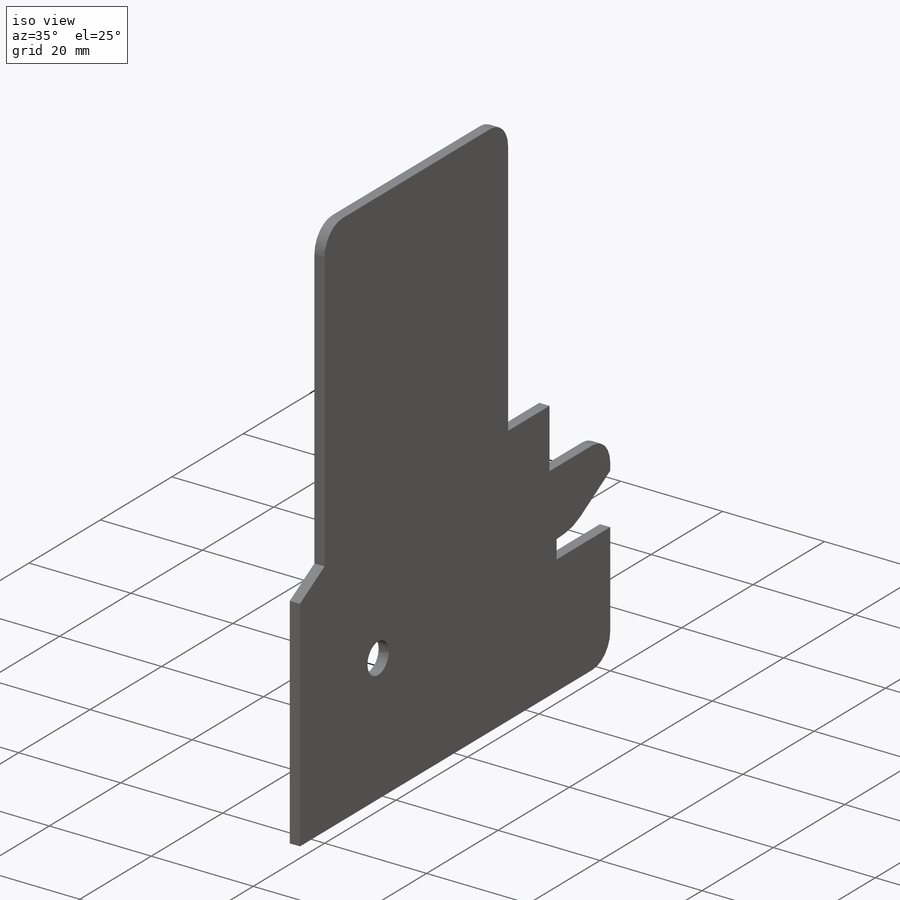
[diagram: iso view]
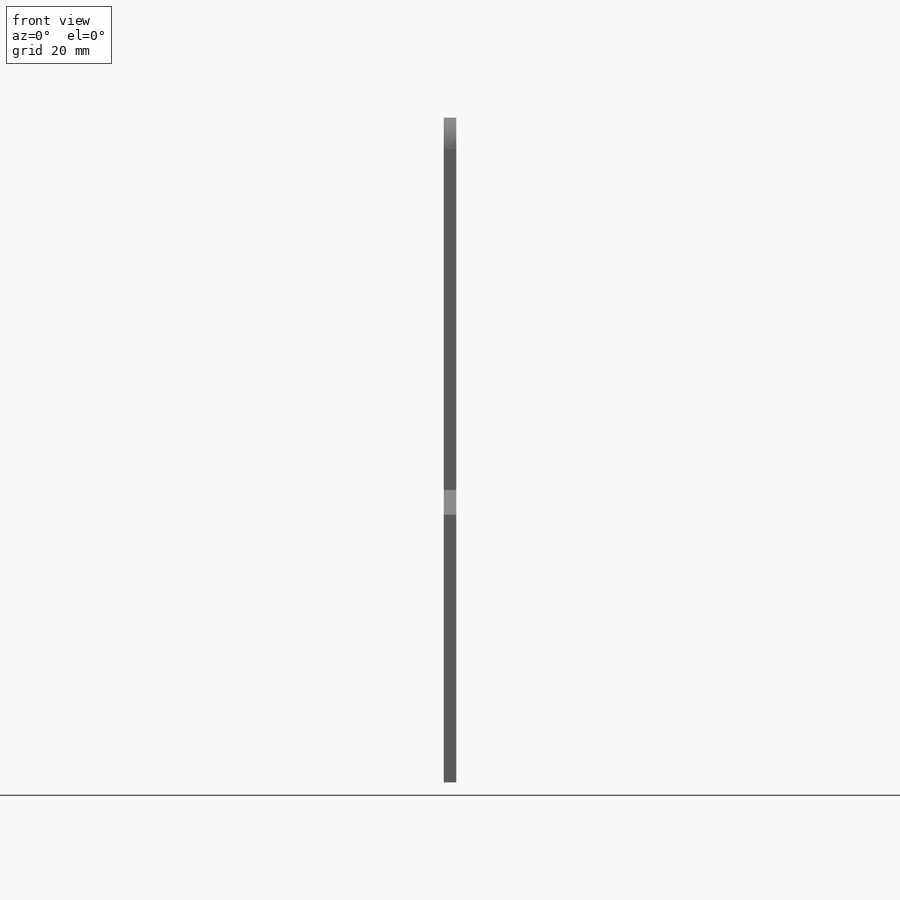
[diagram: front view]
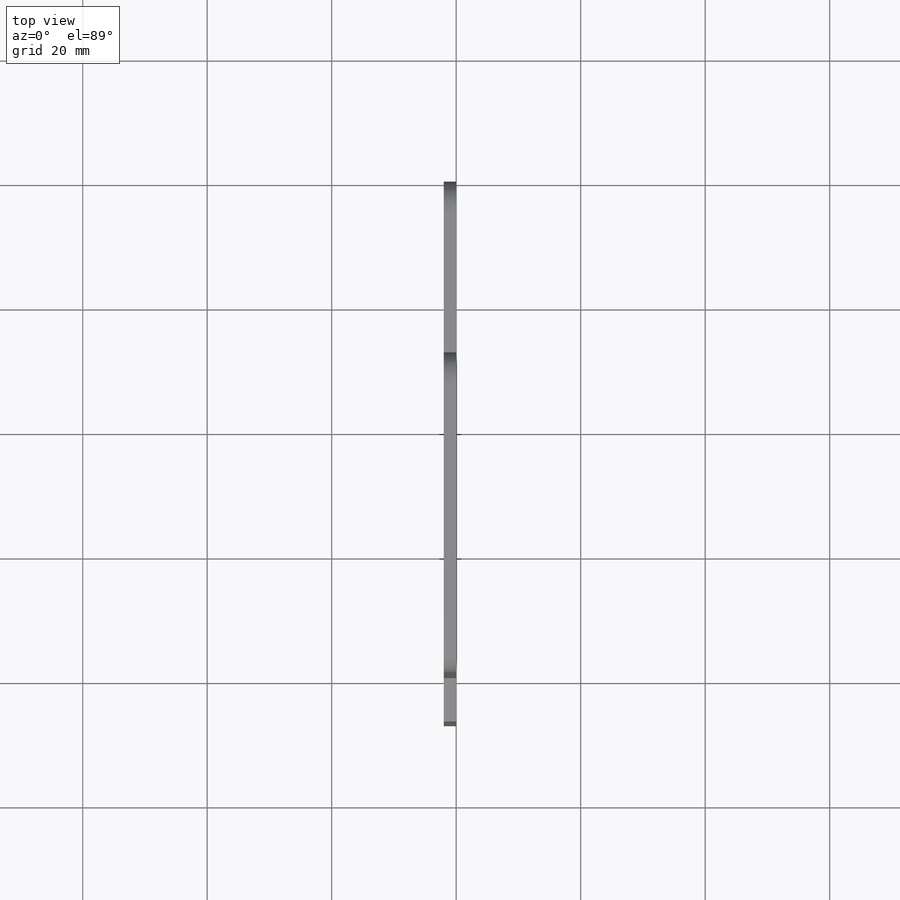
[diagram: top view]
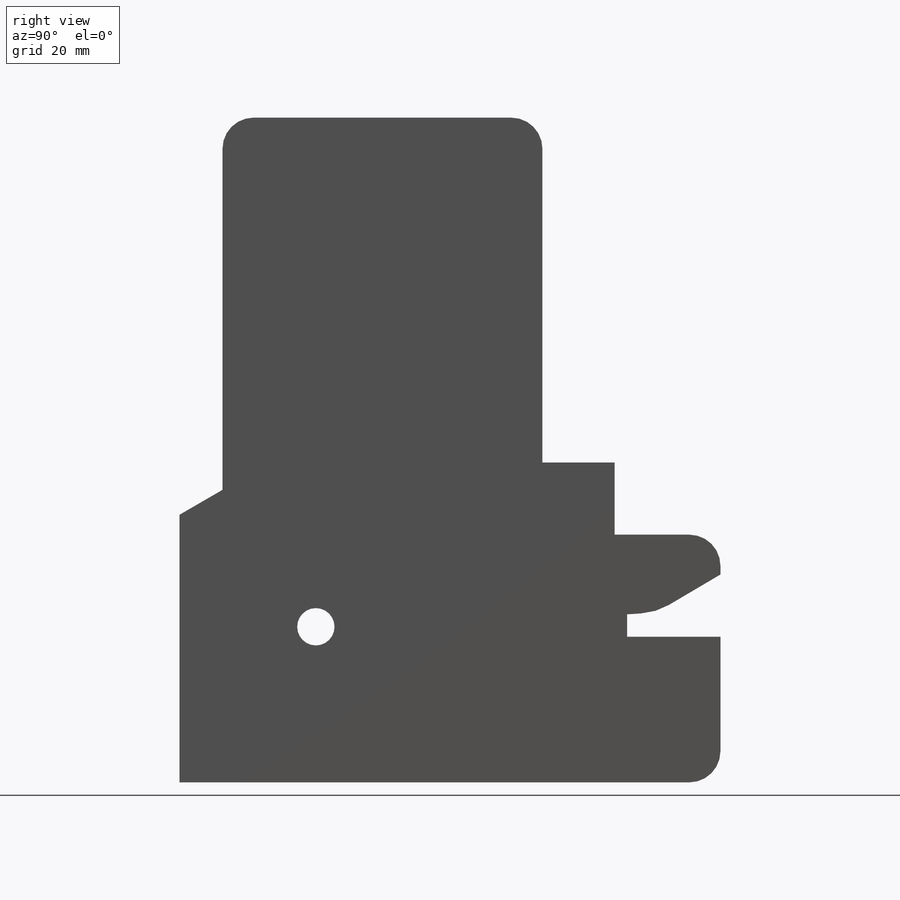
[diagram: right view]
SOLIDWORKS PART (.sldprt)
format: sldprt  version: not decoded by parser v0  size: 166,400 bytes
history: native  units: mm
features: plane x3, sketch x2, fillet x2, material x1, extrude x1, cut_extrude x1 (+9 scaffold rows collapsed)
feature tree (19):
  scaffold x9  (default folders/planes/origin — collapsed)
  material  "Material <nicht festgelegt>"
  plane  "Ebene vorne"
  plane  "Ebene oben"
  plane  "Ebene rechts"
  sketch  "Skizze2"  dims[c1.D1=106.8mm c1.D2=86.9mm c2.D1=106.8mm c2.D3=~55.403912mm c2.D4=~51.396088mm c3.D3=~51.396088mm c3.D4=47.0mm c3.D5=43.0mm c3.D6=80.0mm c3.D7=28.6mm c3.D8=17.0mm c3.D9=39.8mm c3.D10=3.6mm c3.D11=23.4mm c3.D12=4.2mm c3.D13=12.0mm c3.D14=6.4mm c3.D15=15.0mm c4.D12=0.3mm c4.D4=~165.91619deg]
  extrude  "Aufsatz-Linear austragen1"  Depth=2mm
  fillet  "Verrundung6"  Radius=5mm
  fillet  "Verrundung7"  Radius=10mm
  sketch  "Skizze4"  dims[c1.D2=6.0mm c1.D1=21.6mm c2.D2=18.7mm c2.D3=62.0mm c2.D4=21.7mm c2.D5=24.6mm c2.D6=24.6mm c2.D1=22.0mm c3.D4=65.0mm c3.D3=~142.255323deg]
  cut_extrude  "Schnitt-Linear austragen1"  [1 undecoded]
decode coverage: 5 of 6 modeling features carry decoded parameters
note: ~ marks probable driven/reference dimensions
note: 1 parameter value undecoded
note: suppression state not decoded; provenance and decode notes live in map.json
